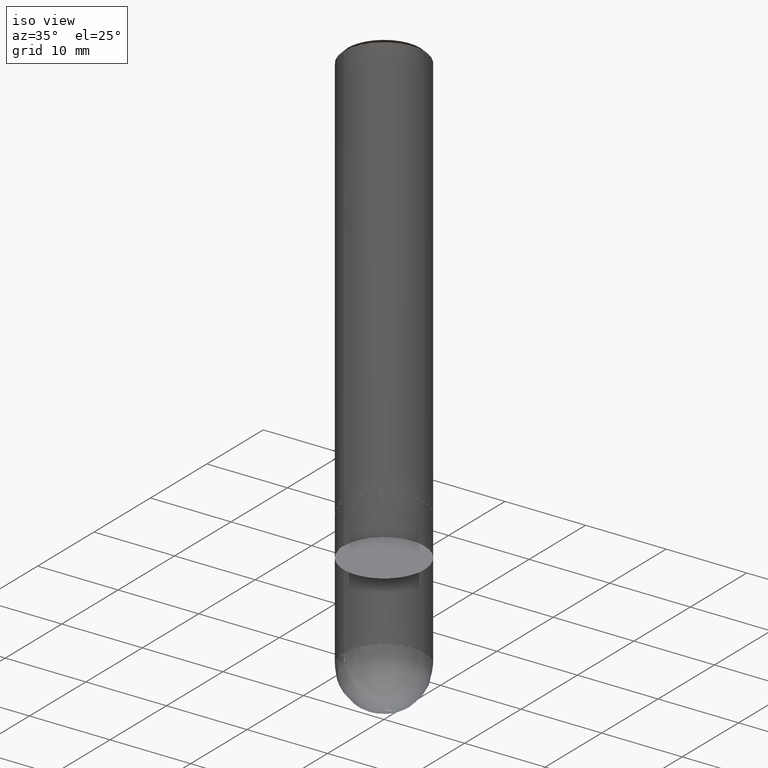
[diagram: clean part render]
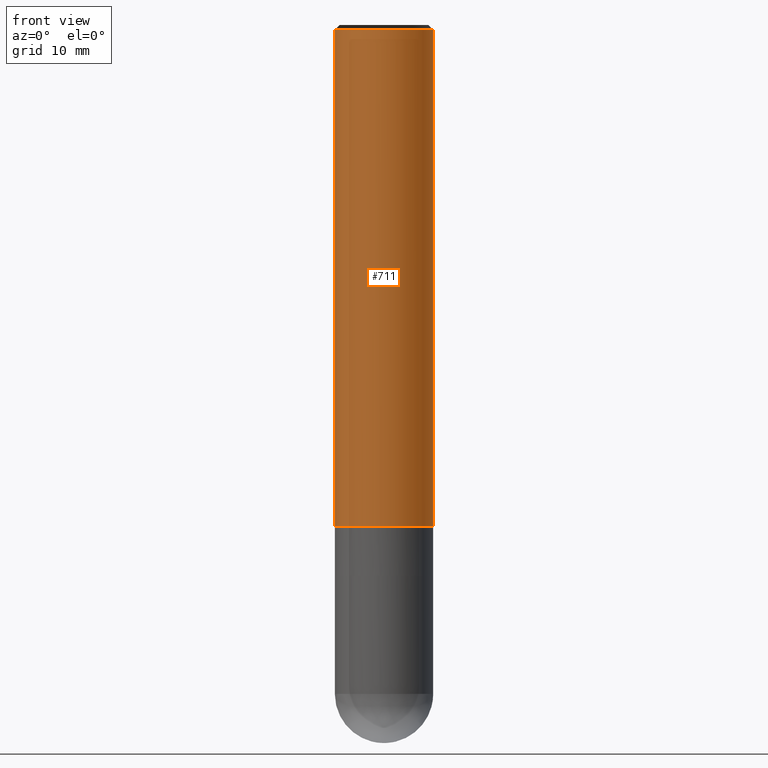
[diagram: tour spotlight — one face highlighted and labeled with its STEP entity id]
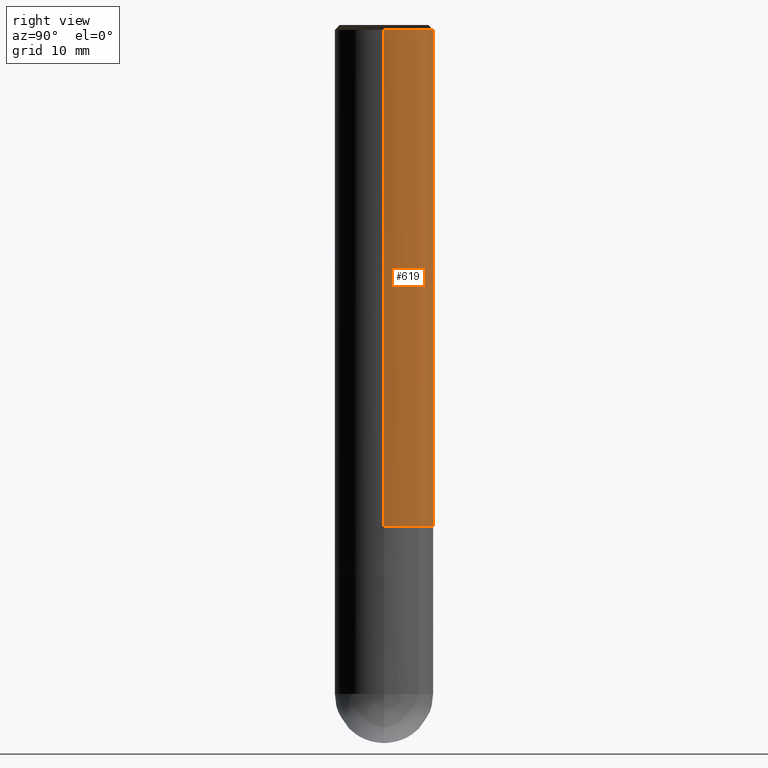
[diagram: tour spotlight — one face highlighted and labeled with its STEP entity id]
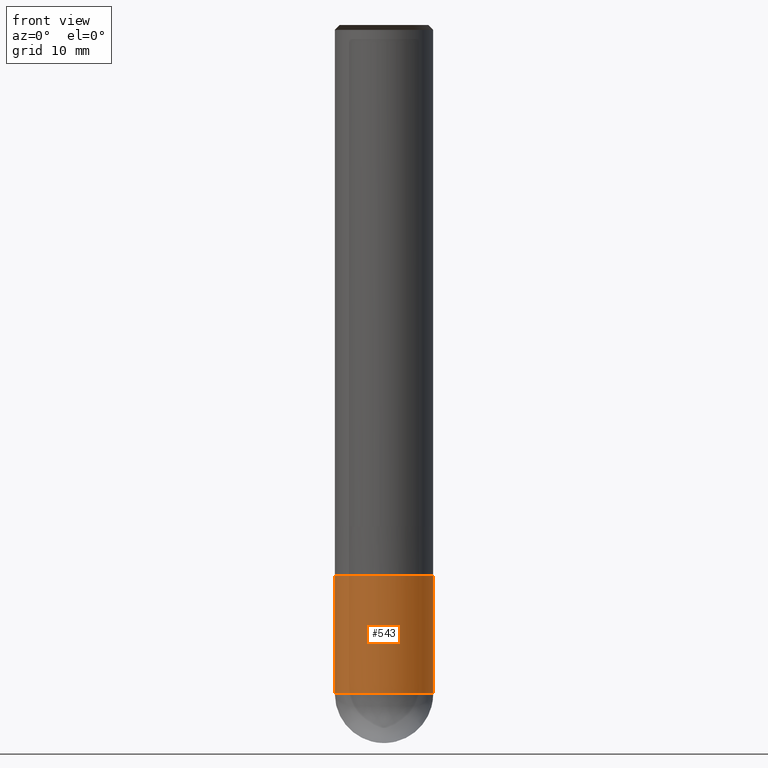
[diagram: tour spotlight — one face highlighted and labeled with its STEP entity id]
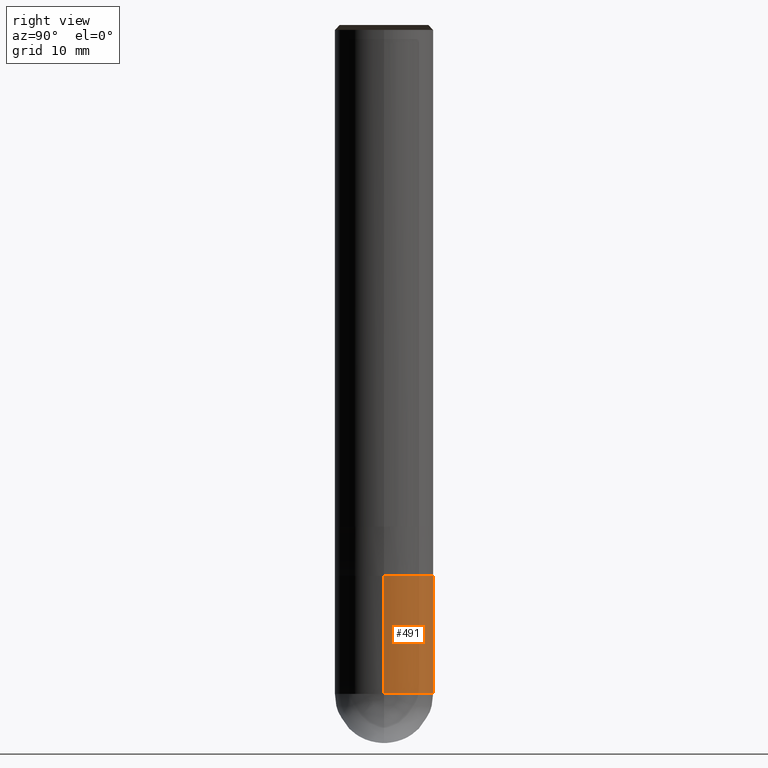
[diagram: tour spotlight — one face highlighted and labeled with its STEP entity id]
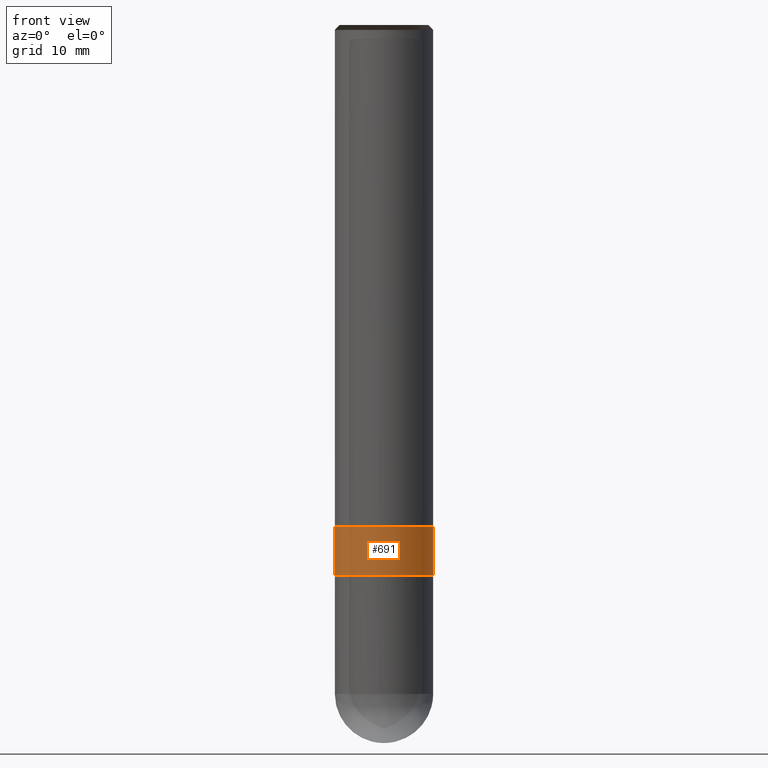
[diagram: tour spotlight — one face highlighted and labeled with its STEP entity id]
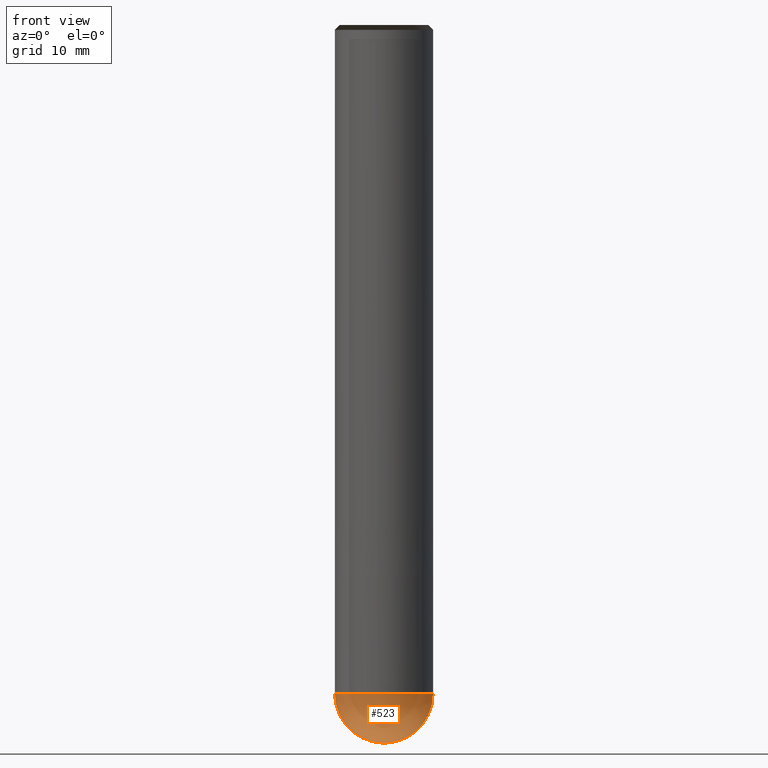
[diagram: tour spotlight — one face highlighted and labeled with its STEP entity id]
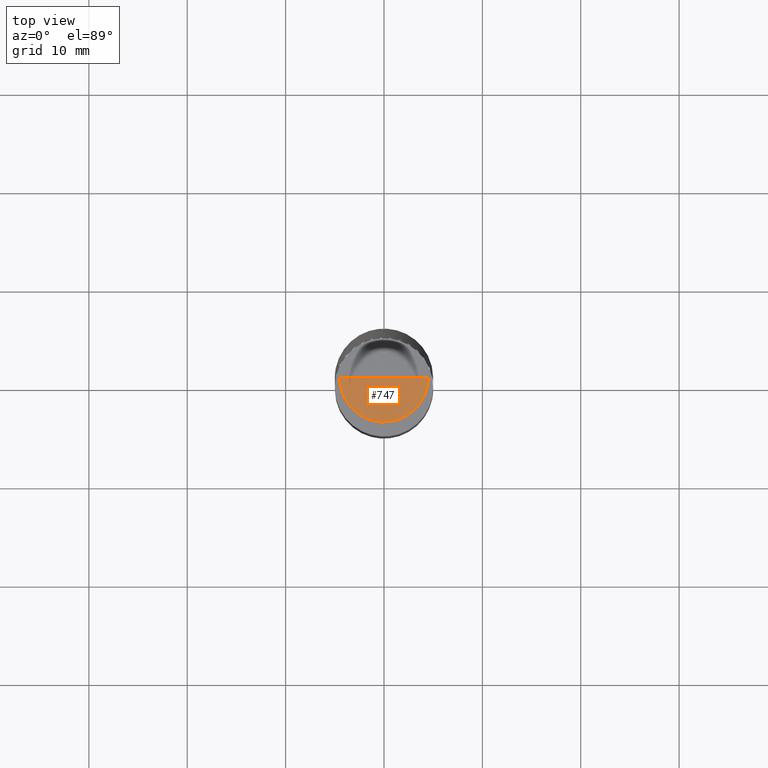
[diagram: tour spotlight — one face highlighted and labeled with its STEP entity id]
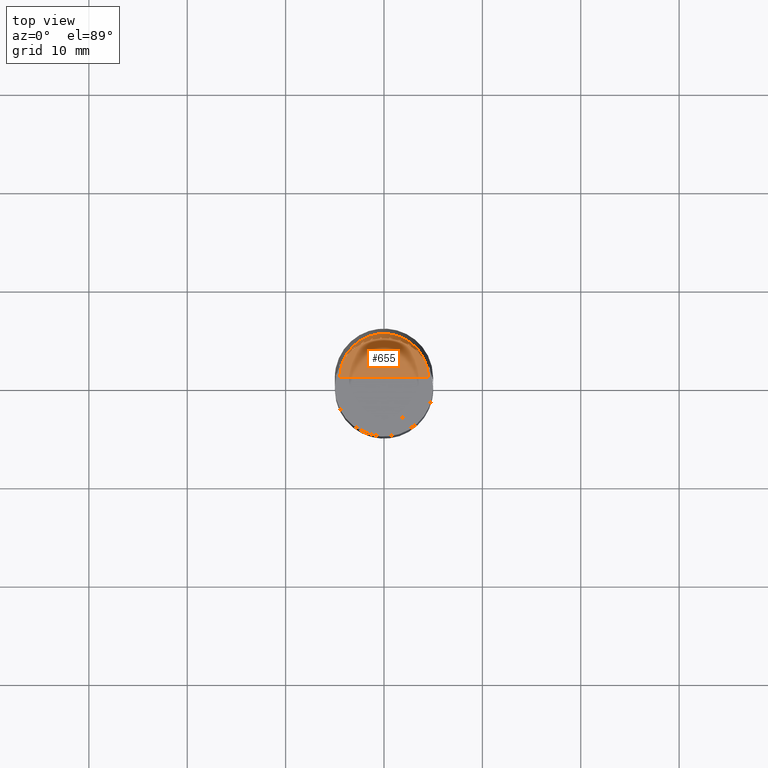
[diagram: tour spotlight — one face highlighted and labeled with its STEP entity id]
A machine part: a face-by-face anatomy tour. The part has 16 B-rep faces; the first image is the clean iso view, then the 8 largest visible faces are spotlighted one at a time (largest first), each with its STEP entity span.

Face 1 — front view, entity #711. In plain terms, the highlighted face is a freeform B-spline surface patch.
Definition (entity closure, byte-faithful):
#426=CARTESIAN_POINT('',(5.0,0.0,0.0));
#430=CARTESIAN_POINT('',(-5.0,0.0,0.0));
#431=CARTESIAN_POINT('',(5.0,0.0,50.5));
#435=CARTESIAN_POINT('',(-5.0,0.0,50.5));
#442=CARTESIAN_POINT('',(-5.0,-5.0,0.0));
#443=CARTESIAN_POINT('',(0.0,-5.0,0.0));
#444=CARTESIAN_POINT('',(5.0,-5.0,0.0));
#445=CARTESIAN_POINT('',(-5.0,-5.0,50.5));
#446=CARTESIAN_POINT('',(0.0,-5.0,50.5));
#447=CARTESIAN_POINT('',(5.0,-5.0,50.5));
#692=(
BOUNDED_SURFACE()
B_SPLINE_SURFACE(1,2,(
(#430,#442,#443,#444,#426),
(#435,#445,#446,#447,#431)
), .UNSPECIFIED.,.F.,.F.,.F.)
B_SPLINE_SURFACE_WITH_KNOTS((2,2),(3,2,3),(
0.0,1.0),(
0.0,0.5,1.0), .UNSPECIFIED.)
GEOMETRIC_REPRESENTATION_ITEM()
RATIONAL_B_SPLINE_SURFACE(((1.0,0.707106781187,1.0,0.707106781187,1.0),
(1.0,0.707106781187,1.0,0.707106781187,1.0)
))
REPRESENTATION_ITEM('')
SURFACE()
);
#693=(
BOUNDED_CURVE()
B_SPLINE_CURVE(2,(#426,#444,#443,#442,#430),.UNSPECIFIED.,.F.,.F.)
B_SPLINE_CURVE_WITH_KNOTS((3,2,3),
(0.0,0.5,1.0),.UNSPECIFIED.)
CURVE()
GEOMETRIC_REPRESENTATION_ITEM()
RATIONAL_B_SPLINE_CURVE((1.0,0.707106781187,1.0,0.707106781187,1.0))
REPRESENTATION_ITEM('')
);
#694=(
BOUNDED_CURVE()
B_SPLINE_CURVE(1,(#430,#435),.UNSPECIFIED.,.F.,.F.)
B_SPLINE_CURVE_WITH_KNOTS((2,2),
(0.0,1.0),.UNSPECIFIED.)
CURVE()
GEOMETRIC_REPRESENTATION_ITEM()
RATIONAL_B_SPLINE_CURVE((1.0,1.0))
REPRESENTATION_ITEM('')
);
#695=(
BOUNDED_CURVE()
B_SPLINE_CURVE(2,(#435,#445,#446,#447,#431),.UNSPECIFIED.,.F.,.F.)
B_SPLINE_CURVE_WITH_KNOTS((3,2,3),
(0.0,0.5,1.0),.UNSPECIFIED.)
CURVE()
GEOMETRIC_REPRESENTATION_ITEM()
RATIONAL_B_SPLINE_CURVE((1.0,0.707106781187,1.0,0.707106781187,1.0))
REPRESENTATION_ITEM('')
);
#696=(
BOUNDED_CURVE()
B_SPLINE_CURVE(1,(#431,#426),.UNSPECIFIED.,.F.,.F.)
B_SPLINE_CURVE_WITH_KNOTS((2,2),
(0.0,1.0),.UNSPECIFIED.)
CURVE()
GEOMETRIC_REPRESENTATION_ITEM()
RATIONAL_B_SPLINE_CURVE((1.0,1.0))
REPRESENTATION_ITEM('')
);
#697=VERTEX_POINT('',#426);
#698=VERTEX_POINT('',#430);
#699=VERTEX_POINT('',#431);
#700=VERTEX_POINT('',#435);
#701=EDGE_CURVE('',#697,#698,#693,.T.);
#702=EDGE_CURVE('',#698,#700,#694,.T.);
#703=EDGE_CURVE('',#700,#699,#695,.T.);
#704=EDGE_CURVE('',#699,#697,#696,.T.);
#705=ORIENTED_EDGE('',*,*,#701,.T.);
#706=ORIENTED_EDGE('',*,*,#702,.T.);
#707=ORIENTED_EDGE('',*,*,#703,.T.);
#708=ORIENTED_EDGE('',*,*,#704,.T.);
#709=EDGE_LOOP('',(#705,#706,#707,#708));
#710=FACE_OUTER_BOUND('',#709,.T.);
#711=ADVANCED_FACE('',(#710),#692,.T.);

Face 2 — right view, entity #619. In plain terms, the highlighted face is a freeform B-spline surface patch.
Definition (entity closure, byte-faithful):
#426=CARTESIAN_POINT('',(5.0,0.0,0.0));
#427=CARTESIAN_POINT('',(5.0,5.0,0.0));
#428=CARTESIAN_POINT('',(0.0,5.0,0.0));
#429=CARTESIAN_POINT('',(-5.0,5.0,0.0));
#430=CARTESIAN_POINT('',(-5.0,0.0,0.0));
#431=CARTESIAN_POINT('',(5.0,0.0,50.5));
#432=CARTESIAN_POINT('',(5.0,5.0,50.5));
#433=CARTESIAN_POINT('',(0.0,5.0,50.5));
#434=CARTESIAN_POINT('',(-5.0,5.0,50.5));
#435=CARTESIAN_POINT('',(-5.0,0.0,50.5));
#600=(
BOUNDED_SURFACE()
B_SPLINE_SURFACE(1,2,(
(#426,#427,#428,#429,#430),
(#431,#432,#433,#434,#435)
), .UNSPECIFIED.,.F.,.F.,.F.)
B_SPLINE_SURFACE_WITH_KNOTS((2,2),(3,2,3),(
0.0,1.0),(
0.0,0.5,1.0), .UNSPECIFIED.)
GEOMETRIC_REPRESENTATION_ITEM()
RATIONAL_B_SPLINE_SURFACE(((1.0,0.707106781187,1.0,0.707106781187,1.0),
(1.0,0.707106781187,1.0,0.707106781187,1.0)
))
REPRESENTATION_ITEM('')
SURFACE()
);
#601=(
BOUNDED_CURVE()
B_SPLINE_CURVE(2,(#430,#429,#428,#427,#426),.UNSPECIFIED.,.F.,.F.)
B_SPLINE_CURVE_WITH_KNOTS((3,2,3),
(0.0,0.5,1.0),.UNSPECIFIED.)
CURVE()
GEOMETRIC_REPRESENTATION_ITEM()
RATIONAL_B_SPLINE_CURVE((1.0,0.707106781187,1.0,0.707106781187,1.0))
REPRESENTATION_ITEM('')
);
#602=(
BOUNDED_CURVE()
B_SPLINE_CURVE(1,(#426,#431),.UNSPECIFIED.,.F.,.F.)
B_SPLINE_CURVE_WITH_KNOTS((2,2),
(0.0,1.0),.UNSPECIFIED.)
CURVE()
GEOMETRIC_REPRESENTATION_ITEM()
RATIONAL_B_SPLINE_CURVE((1.0,1.0))
REPRESENTATION_ITEM('')
);
#603=(
BOUNDED_CURVE()
B_SPLINE_CURVE(2,(#431,#432,#433,#434,#435),.UNSPECIFIED.,.F.,.F.)
B_SPLINE_CURVE_WITH_KNOTS((3,2,3),
(0.0,0.5,1.0),.UNSPECIFIED.)
CURVE()
GEOMETRIC_REPRESENTATION_ITEM()
RATIONAL_B_SPLINE_CURVE((1.0,0.707106781187,1.0,0.707106781187,1.0))
REPRESENTATION_ITEM('')
);
#604=(
BOUNDED_CURVE()
B_SPLINE_CURVE(1,(#435,#430),.UNSPECIFIED.,.F.,.F.)
B_SPLINE_CURVE_WITH_KNOTS((2,2),
(0.0,1.0),.UNSPECIFIED.)
CURVE()
GEOMETRIC_REPRESENTATION_ITEM()
RATIONAL_B_SPLINE_CURVE((1.0,1.0))
REPRESENTATION_ITEM('')
);
#605=VERTEX_POINT('',#426);
#606=VERTEX_POINT('',#430);
#607=VERTEX_POINT('',#431);
#608=VERTEX_POINT('',#435);
#609=EDGE_CURVE('',#606,#605,#601,.T.);
#610=EDGE_CURVE('',#605,#607,#602,.T.);
#611=EDGE_CURVE('',#607,#608,#603,.T.);
#612=EDGE_CURVE('',#608,#606,#604,.T.);
#613=ORIENTED_EDGE('',*,*,#609,.T.);
#614=ORIENTED_EDGE('',*,*,#610,.T.);
#615=ORIENTED_EDGE('',*,*,#611,.T.);
#616=ORIENTED_EDGE('',*,*,#612,.T.);
#617=EDGE_LOOP('',(#613,#614,#615,#616));
#618=FACE_OUTER_BOUND('',#617,.T.);
#619=ADVANCED_FACE('',(#618),#600,.T.);

Face 3 — front view, entity #543. In plain terms, the highlighted face is a freeform B-spline surface patch.
Definition (entity closure, byte-faithful):
#406=CARTESIAN_POINT('',(5.0,0.0,-17.0));
#410=CARTESIAN_POINT('',(-5.0,0.0,-17.0));
#411=CARTESIAN_POINT('',(5.0,0.0,-5.0));
#415=CARTESIAN_POINT('',(-5.0,0.0,-5.0));
#420=CARTESIAN_POINT('',(-5.0,-5.0,-17.0));
#421=CARTESIAN_POINT('',(0.0,-5.0,-17.0));
#422=CARTESIAN_POINT('',(5.0,-5.0,-17.0));
#423=CARTESIAN_POINT('',(-5.0,-5.0,-5.0));
#424=CARTESIAN_POINT('',(0.0,-5.0,-5.0));
#425=CARTESIAN_POINT('',(5.0,-5.0,-5.0));
#524=(
BOUNDED_SURFACE()
B_SPLINE_SURFACE(1,2,(
(#410,#420,#421,#422,#406),
(#415,#423,#424,#425,#411)
), .UNSPECIFIED.,.F.,.F.,.F.)
B_SPLINE_SURFACE_WITH_KNOTS((2,2),(3,2,3),(
0.0,1.0),(
0.0,0.5,1.0), .UNSPECIFIED.)
GEOMETRIC_REPRESENTATION_ITEM()
RATIONAL_B_SPLINE_SURFACE(((1.0,0.707106781187,1.0,0.707106781187,1.0),
(1.0,0.707106781187,1.0,0.707106781187,1.0)
))
REPRESENTATION_ITEM('')
SURFACE()
);
#525=(
BOUNDED_CURVE()
B_SPLINE_CURVE(2,(#406,#422,#421,#420,#410),.UNSPECIFIED.,.F.,.F.)
B_SPLINE_CURVE_WITH_KNOTS((3,2,3),
(0.0,0.5,1.0),.UNSPECIFIED.)
CURVE()
GEOMETRIC_REPRESENTATION_ITEM()
RATIONAL_B_SPLINE_CURVE((1.0,0.707106781187,1.0,0.707106781187,1.0))
REPRESENTATION_ITEM('')
);
#526=(
BOUNDED_CURVE()
B_SPLINE_CURVE(1,(#410,#415),.UNSPECIFIED.,.F.,.F.)
B_SPLINE_CURVE_WITH_KNOTS((2,2),
(0.0,1.0),.UNSPECIFIED.)
CURVE()
GEOMETRIC_REPRESENTATION_ITEM()
RATIONAL_B_SPLINE_CURVE((1.0,1.0))
REPRESENTATION_ITEM('')
);
#527=(
BOUNDED_CURVE()
B_SPLINE_CURVE(2,(#415,#423,#424,#425,#411),.UNSPECIFIED.,.F.,.F.)
B_SPLINE_CURVE_WITH_KNOTS((3,2,3),
(0.0,0.5,1.0),.UNSPECIFIED.)
CURVE()
GEOMETRIC_REPRESENTATION_ITEM()
RATIONAL_B_SPLINE_CURVE((1.0,0.707106781187,1.0,0.707106781187,1.0))
REPRESENTATION_ITEM('')
);
#528=(
BOUNDED_CURVE()
B_SPLINE_CURVE(1,(#411,#406),.UNSPECIFIED.,.F.,.F.)
B_SPLINE_CURVE_WITH_KNOTS((2,2),
(0.0,1.0),.UNSPECIFIED.)
CURVE()
GEOMETRIC_REPRESENTATION_ITEM()
RATIONAL_B_SPLINE_CURVE((1.0,1.0))
REPRESENTATION_ITEM('')
);
#529=VERTEX_POINT('',#406);
#530=VERTEX_POINT('',#410);
#531=VERTEX_POINT('',#411);
#532=VERTEX_POINT('',#415);
#533=EDGE_CURVE('',#529,#530,#525,.T.);
#534=EDGE_CURVE('',#530,#532,#526,.T.);
#535=EDGE_CURVE('',#532,#531,#527,.T.);
#536=EDGE_CURVE('',#531,#529,#528,.T.);
#537=ORIENTED_EDGE('',*,*,#533,.T.);
#538=ORIENTED_EDGE('',*,*,#534,.T.);
#539=ORIENTED_EDGE('',*,*,#535,.T.);
#540=ORIENTED_EDGE('',*,*,#536,.T.);
#541=EDGE_LOOP('',(#537,#538,#539,#540));
#542=FACE_OUTER_BOUND('',#541,.T.);
#543=ADVANCED_FACE('',(#542),#524,.T.);

Face 4 — right view, entity #491. In plain terms, the highlighted face is a freeform B-spline surface patch.
Definition (entity closure, byte-faithful):
#406=CARTESIAN_POINT('',(5.0,0.0,-17.0));
#407=CARTESIAN_POINT('',(5.0,5.0,-17.0));
#408=CARTESIAN_POINT('',(0.0,5.0,-17.0));
#409=CARTESIAN_POINT('',(-5.0,5.0,-17.0));
#410=CARTESIAN_POINT('',(-5.0,0.0,-17.0));
#411=CARTESIAN_POINT('',(5.0,0.0,-5.0));
#412=CARTESIAN_POINT('',(5.0,5.0,-5.0));
#413=CARTESIAN_POINT('',(0.0,5.0,-5.0));
#414=CARTESIAN_POINT('',(-5.0,5.0,-5.0));
#415=CARTESIAN_POINT('',(-5.0,0.0,-5.0));
#472=(
BOUNDED_SURFACE()
B_SPLINE_SURFACE(1,2,(
(#406,#407,#408,#409,#410),
(#411,#412,#413,#414,#415)
), .UNSPECIFIED.,.F.,.F.,.F.)
B_SPLINE_SURFACE_WITH_KNOTS((2,2),(3,2,3),(
0.0,1.0),(
0.0,0.5,1.0), .UNSPECIFIED.)
GEOMETRIC_REPRESENTATION_ITEM()
RATIONAL_B_SPLINE_SURFACE(((1.0,0.707106781187,1.0,0.707106781187,1.0),
(1.0,0.707106781187,1.0,0.707106781187,1.0)
))
REPRESENTATION_ITEM('')
SURFACE()
);
#473=(
BOUNDED_CURVE()
B_SPLINE_CURVE(2,(#410,#409,#408,#407,#406),.UNSPECIFIED.,.F.,.F.)
B_SPLINE_CURVE_WITH_KNOTS((3,2,3),
(0.0,0.5,1.0),.UNSPECIFIED.)
CURVE()
GEOMETRIC_REPRESENTATION_ITEM()
RATIONAL_B_SPLINE_CURVE((1.0,0.707106781187,1.0,0.707106781187,1.0))
REPRESENTATION_ITEM('')
);
#474=(
BOUNDED_CURVE()
B_SPLINE_CURVE(1,(#406,#411),.UNSPECIFIED.,.F.,.F.)
B_SPLINE_CURVE_WITH_KNOTS((2,2),
(0.0,1.0),.UNSPECIFIED.)
CURVE()
GEOMETRIC_REPRESENTATION_ITEM()
RATIONAL_B_SPLINE_CURVE((1.0,1.0))
REPRESENTATION_ITEM('')
);
#475=(
BOUNDED_CURVE()
B_SPLINE_CURVE(2,(#411,#412,#413,#414,#415),.UNSPECIFIED.,.F.,.F.)
B_SPLINE_CURVE_WITH_KNOTS((3,2,3),
(0.0,0.5,1.0),.UNSPECIFIED.)
CURVE()
GEOMETRIC_REPRESENTATION_ITEM()
RATIONAL_B_SPLINE_CURVE((1.0,0.707106781187,1.0,0.707106781187,1.0))
REPRESENTATION_ITEM('')
);
#476=(
BOUNDED_CURVE()
B_SPLINE_CURVE(1,(#415,#410),.UNSPECIFIED.,.F.,.F.)
B_SPLINE_CURVE_WITH_KNOTS((2,2),
(0.0,1.0),.UNSPECIFIED.)
CURVE()
GEOMETRIC_REPRESENTATION_ITEM()
RATIONAL_B_SPLINE_CURVE((1.0,1.0))
REPRESENTATION_ITEM('')
);
#477=VERTEX_POINT('',#406);
#478=VERTEX_POINT('',#410);
#479=VERTEX_POINT('',#411);
#480=VERTEX_POINT('',#415);
#481=EDGE_CURVE('',#478,#477,#473,.T.);
#482=EDGE_CURVE('',#477,#479,#474,.T.);
#483=EDGE_CURVE('',#479,#480,#475,.T.);
#484=EDGE_CURVE('',#480,#478,#476,.T.);
#485=ORIENTED_EDGE('',*,*,#481,.T.);
#486=ORIENTED_EDGE('',*,*,#482,.T.);
#487=ORIENTED_EDGE('',*,*,#483,.T.);
#488=ORIENTED_EDGE('',*,*,#484,.T.);
#489=EDGE_LOOP('',(#485,#486,#487,#488));
#490=FACE_OUTER_BOUND('',#489,.T.);
#491=ADVANCED_FACE('',(#490),#472,.T.);

Face 5 — front view, entity #691. In plain terms, the highlighted face is a freeform B-spline surface patch.
Definition (entity closure, byte-faithful):
#411=CARTESIAN_POINT('',(5.0,0.0,-5.0));
#415=CARTESIAN_POINT('',(-5.0,0.0,-5.0));
#423=CARTESIAN_POINT('',(-5.0,-5.0,-5.0));
#424=CARTESIAN_POINT('',(0.0,-5.0,-5.0));
#425=CARTESIAN_POINT('',(5.0,-5.0,-5.0));
#426=CARTESIAN_POINT('',(5.0,0.0,0.0));
#430=CARTESIAN_POINT('',(-5.0,0.0,0.0));
#442=CARTESIAN_POINT('',(-5.0,-5.0,0.0));
#443=CARTESIAN_POINT('',(0.0,-5.0,0.0));
#444=CARTESIAN_POINT('',(5.0,-5.0,0.0));
#672=(
BOUNDED_SURFACE()
B_SPLINE_SURFACE(1,2,(
(#415,#423,#424,#425,#411),
(#430,#442,#443,#444,#426)
), .UNSPECIFIED.,.F.,.F.,.F.)
B_SPLINE_SURFACE_WITH_KNOTS((2,2),(3,2,3),(
0.0,1.0),(
0.0,0.5,1.0), .UNSPECIFIED.)
GEOMETRIC_REPRESENTATION_ITEM()
RATIONAL_B_SPLINE_SURFACE(((1.0,0.707106781187,1.0,0.707106781187,1.0),
(1.0,0.707106781187,1.0,0.707106781187,1.0)
))
REPRESENTATION_ITEM('')
SURFACE()
);
#673=(
BOUNDED_CURVE()
B_SPLINE_CURVE(2,(#411,#425,#424,#423,#415),.UNSPECIFIED.,.F.,.F.)
B_SPLINE_CURVE_WITH_KNOTS((3,2,3),
(0.0,0.5,1.0),.UNSPECIFIED.)
CURVE()
GEOMETRIC_REPRESENTATION_ITEM()
RATIONAL_B_SPLINE_CURVE((1.0,0.707106781187,1.0,0.707106781187,1.0))
REPRESENTATION_ITEM('')
);
#674=(
BOUNDED_CURVE()
B_SPLINE_CURVE(1,(#415,#430),.UNSPECIFIED.,.F.,.F.)
B_SPLINE_CURVE_WITH_KNOTS((2,2),
(0.0,1.0),.UNSPECIFIED.)
CURVE()
GEOMETRIC_REPRESENTATION_ITEM()
RATIONAL_B_SPLINE_CURVE((1.0,1.0))
REPRESENTATION_ITEM('')
);
#675=(
BOUNDED_CURVE()
B_SPLINE_CURVE(2,(#430,#442,#443,#444,#426),.UNSPECIFIED.,.F.,.F.)
B_SPLINE_CURVE_WITH_KNOTS((3,2,3),
(0.0,0.5,1.0),.UNSPECIFIED.)
CURVE()
GEOMETRIC_REPRESENTATION_ITEM()
RATIONAL_B_SPLINE_CURVE((1.0,0.707106781187,1.0,0.707106781187,1.0))
REPRESENTATION_ITEM('')
);
#676=(
BOUNDED_CURVE()
B_SPLINE_CURVE(1,(#426,#411),.UNSPECIFIED.,.F.,.F.)
B_SPLINE_CURVE_WITH_KNOTS((2,2),
(0.0,1.0),.UNSPECIFIED.)
CURVE()
GEOMETRIC_REPRESENTATION_ITEM()
RATIONAL_B_SPLINE_CURVE((1.0,1.0))
REPRESENTATION_ITEM('')
);
#677=VERTEX_POINT('',#411);
#678=VERTEX_POINT('',#415);
#679=VERTEX_POINT('',#426);
#680=VERTEX_POINT('',#430);
#681=EDGE_CURVE('',#677,#678,#673,.T.);
#682=EDGE_CURVE('',#678,#680,#674,.T.);
#683=EDGE_CURVE('',#680,#679,#675,.T.);
#684=EDGE_CURVE('',#679,#677,#676,.T.);
#685=ORIENTED_EDGE('',*,*,#681,.T.);
#686=ORIENTED_EDGE('',*,*,#682,.T.);
#687=ORIENTED_EDGE('',*,*,#683,.T.);
#688=ORIENTED_EDGE('',*,*,#684,.T.);
#689=EDGE_LOOP('',(#685,#686,#687,#688));
#690=FACE_OUTER_BOUND('',#689,.T.);
#691=ADVANCED_FACE('',(#690),#672,.T.);

Face 6 — front view, entity #523. In plain terms, the highlighted face is a freeform B-spline surface patch.
Definition (entity closure, byte-faithful):
#400=CARTESIAN_POINT('',(0.0,0.0,-22.0));
#401=CARTESIAN_POINT('',(5.0,0.0,-22.0));
#405=CARTESIAN_POINT('',(-5.0,0.0,-22.0));
#406=CARTESIAN_POINT('',(5.0,0.0,-17.0));
#410=CARTESIAN_POINT('',(-5.0,0.0,-17.0));
#417=CARTESIAN_POINT('',(-5.0,-5.0,-22.0));
#418=CARTESIAN_POINT('',(0.0,-5.0,-22.0));
#419=CARTESIAN_POINT('',(5.0,-5.0,-22.0));
#420=CARTESIAN_POINT('',(-5.0,-5.0,-17.0));
#421=CARTESIAN_POINT('',(0.0,-5.0,-17.0));
#422=CARTESIAN_POINT('',(5.0,-5.0,-17.0));
#508=(
BOUNDED_SURFACE()
B_SPLINE_SURFACE(2,2,(
(#400,#400,#400,#400,#400),
(#405,#417,#418,#419,#401),
(#410,#420,#421,#422,#406)
), .UNSPECIFIED.,.F.,.F.,.F.)
B_SPLINE_SURFACE_WITH_KNOTS((3,3),(3,2,3),(
0.0,1.0),(
0.0,0.5,1.0), .UNSPECIFIED.)
GEOMETRIC_REPRESENTATION_ITEM()
RATIONAL_B_SPLINE_SURFACE(((1.0,0.707106781187,1.0,0.707106781187,1.0),
(0.707106781187,0.5,0.707106781187,0.5,0.707106781187),
(1.0,0.707106781187,1.0,0.707106781187,1.0)
))
REPRESENTATION_ITEM('')
SURFACE()
);
#509=(
BOUNDED_CURVE()
B_SPLINE_CURVE(2,(#406,#401,#400),.UNSPECIFIED.,.F.,.F.)
B_SPLINE_CURVE_WITH_KNOTS((3,3),
(0.0,1.0),.UNSPECIFIED.)
CURVE()
GEOMETRIC_REPRESENTATION_ITEM()
RATIONAL_B_SPLINE_CURVE((1.0,0.707106781187,1.0))
REPRESENTATION_ITEM('')
);
#510=(
BOUNDED_CURVE()
B_SPLINE_CURVE(2,(#400,#405,#410),.UNSPECIFIED.,.F.,.F.)
B_SPLINE_CURVE_WITH_KNOTS((3,3),
(0.0,1.0),.UNSPECIFIED.)
CURVE()
GEOMETRIC_REPRESENTATION_ITEM()
RATIONAL_B_SPLINE_CURVE((1.0,0.707106781187,1.0))
REPRESENTATION_ITEM('')
);
#511=(
BOUNDED_CURVE()
B_SPLINE_CURVE(2,(#410,#420,#421,#422,#406),.UNSPECIFIED.,.F.,.F.)
B_SPLINE_CURVE_WITH_KNOTS((3,2,3),
(0.0,0.5,1.0),.UNSPECIFIED.)
CURVE()
GEOMETRIC_REPRESENTATION_ITEM()
RATIONAL_B_SPLINE_CURVE((1.0,0.707106781187,1.0,0.707106781187,1.0))
REPRESENTATION_ITEM('')
);
#512=VERTEX_POINT('',#400);
#513=VERTEX_POINT('',#406);
#514=VERTEX_POINT('',#410);
#515=EDGE_CURVE('',#513,#512,#509,.T.);
#516=EDGE_CURVE('',#512,#514,#510,.T.);
#517=EDGE_CURVE('',#514,#513,#511,.T.);
#518=ORIENTED_EDGE('',*,*,#515,.T.);
#519=ORIENTED_EDGE('',*,*,#516,.T.);
#520=ORIENTED_EDGE('',*,*,#517,.T.);
#521=EDGE_LOOP('',(#518,#519,#520));
#522=FACE_OUTER_BOUND('',#521,.T.);
#523=ADVANCED_FACE('',(#522),#508,.T.);

Face 7 — top view, entity #747. In plain terms, the highlighted face is a freeform B-spline surface patch.
Definition (entity closure, byte-faithful):
#436=CARTESIAN_POINT('',(4.5,0.0,51.0));
#440=CARTESIAN_POINT('',(-4.5,0.0,51.0));
#441=CARTESIAN_POINT('',(0.0,0.0,51.0));
#448=CARTESIAN_POINT('',(-4.5,-4.5,51.0));
#449=CARTESIAN_POINT('',(0.0,-4.5,51.0));
#450=CARTESIAN_POINT('',(4.5,-4.5,51.0));
#732=(
BOUNDED_SURFACE()
B_SPLINE_SURFACE(1,2,(
(#440,#448,#449,#450,#436),
(#441,#441,#441,#441,#441)
), .UNSPECIFIED.,.F.,.F.,.F.)
B_SPLINE_SURFACE_WITH_KNOTS((2,2),(3,2,3),(
0.0,1.0),(
0.0,0.5,1.0), .UNSPECIFIED.)
GEOMETRIC_REPRESENTATION_ITEM()
RATIONAL_B_SPLINE_SURFACE(((1.0,0.707106781187,1.0,0.707106781187,1.0),
(1.0,0.707106781187,1.0,0.707106781187,1.0)
))
REPRESENTATION_ITEM('')
SURFACE()
);
#733=(
BOUNDED_CURVE()
B_SPLINE_CURVE(2,(#436,#450,#449,#448,#440),.UNSPECIFIED.,.F.,.F.)
B_SPLINE_CURVE_WITH_KNOTS((3,2,3),
(0.0,0.5,1.0),.UNSPECIFIED.)
CURVE()
GEOMETRIC_REPRESENTATION_ITEM()
RATIONAL_B_SPLINE_CURVE((1.0,0.707106781187,1.0,0.707106781187,1.0))
REPRESENTATION_ITEM('')
);
#734=(
BOUNDED_CURVE()
B_SPLINE_CURVE(1,(#440,#441),.UNSPECIFIED.,.F.,.F.)
B_SPLINE_CURVE_WITH_KNOTS((2,2),
(0.0,1.0),.UNSPECIFIED.)
CURVE()
GEOMETRIC_REPRESENTATION_ITEM()
RATIONAL_B_SPLINE_CURVE((1.0,1.0))
REPRESENTATION_ITEM('')
);
#735=(
BOUNDED_CURVE()
B_SPLINE_CURVE(1,(#441,#436),.UNSPECIFIED.,.F.,.F.)
B_SPLINE_CURVE_WITH_KNOTS((2,2),
(0.0,1.0),.UNSPECIFIED.)
CURVE()
GEOMETRIC_REPRESENTATION_ITEM()
RATIONAL_B_SPLINE_CURVE((1.0,1.0))
REPRESENTATION_ITEM('')
);
#736=VERTEX_POINT('',#436);
#737=VERTEX_POINT('',#440);
#738=VERTEX_POINT('',#441);
#739=EDGE_CURVE('',#736,#737,#733,.T.);
#740=EDGE_CURVE('',#737,#738,#734,.T.);
#741=EDGE_CURVE('',#738,#736,#735,.T.);
#742=ORIENTED_EDGE('',*,*,#739,.T.);
#743=ORIENTED_EDGE('',*,*,#740,.T.);
#744=ORIENTED_EDGE('',*,*,#741,.T.);
#745=EDGE_LOOP('',(#742,#743,#744));
#746=FACE_OUTER_BOUND('',#745,.T.);
#747=ADVANCED_FACE('',(#746),#732,.T.);

Face 8 — top view, entity #655. In plain terms, the highlighted face is a freeform B-spline surface patch.
Definition (entity closure, byte-faithful):
#436=CARTESIAN_POINT('',(4.5,0.0,51.0));
#437=CARTESIAN_POINT('',(4.5,4.5,51.0));
#438=CARTESIAN_POINT('',(0.0,4.5,51.0));
#439=CARTESIAN_POINT('',(-4.5,4.5,51.0));
#440=CARTESIAN_POINT('',(-4.5,0.0,51.0));
#441=CARTESIAN_POINT('',(0.0,0.0,51.0));
#640=(
BOUNDED_SURFACE()
B_SPLINE_SURFACE(1,2,(
(#436,#437,#438,#439,#440),
(#441,#441,#441,#441,#441)
), .UNSPECIFIED.,.F.,.F.,.F.)
B_SPLINE_SURFACE_WITH_KNOTS((2,2),(3,2,3),(
0.0,1.0),(
0.0,0.5,1.0), .UNSPECIFIED.)
GEOMETRIC_REPRESENTATION_ITEM()
RATIONAL_B_SPLINE_SURFACE(((1.0,0.707106781187,1.0,0.707106781187,1.0),
(1.0,0.707106781187,1.0,0.707106781187,1.0)
))
REPRESENTATION_ITEM('')
SURFACE()
);
#641=(
BOUNDED_CURVE()
B_SPLINE_CURVE(2,(#440,#439,#438,#437,#436),.UNSPECIFIED.,.F.,.F.)
B_SPLINE_CURVE_WITH_KNOTS((3,2,3),
(0.0,0.5,1.0),.UNSPECIFIED.)
CURVE()
GEOMETRIC_REPRESENTATION_ITEM()
RATIONAL_B_SPLINE_CURVE((1.0,0.707106781187,1.0,0.707106781187,1.0))
REPRESENTATION_ITEM('')
);
#642=(
BOUNDED_CURVE()
B_SPLINE_CURVE(1,(#436,#441),.UNSPECIFIED.,.F.,.F.)
B_SPLINE_CURVE_WITH_KNOTS((2,2),
(0.0,1.0),.UNSPECIFIED.)
CURVE()
GEOMETRIC_REPRESENTATION_ITEM()
RATIONAL_B_SPLINE_CURVE((1.0,1.0))
REPRESENTATION_ITEM('')
);
#643=(
BOUNDED_CURVE()
B_SPLINE_CURVE(1,(#441,#440),.UNSPECIFIED.,.F.,.F.)
B_SPLINE_CURVE_WITH_KNOTS((2,2),
(0.0,1.0),.UNSPECIFIED.)
CURVE()
GEOMETRIC_REPRESENTATION_ITEM()
RATIONAL_B_SPLINE_CURVE((1.0,1.0))
REPRESENTATION_ITEM('')
);
#644=VERTEX_POINT('',#436);
#645=VERTEX_POINT('',#440);
#646=VERTEX_POINT('',#441);
#647=EDGE_CURVE('',#645,#644,#641,.T.);
#648=EDGE_CURVE('',#644,#646,#642,.T.);
#649=EDGE_CURVE('',#646,#645,#643,.T.);
#650=ORIENTED_EDGE('',*,*,#647,.T.);
#651=ORIENTED_EDGE('',*,*,#648,.T.);
#652=ORIENTED_EDGE('',*,*,#649,.T.);
#653=EDGE_LOOP('',(#650,#651,#652));
#654=FACE_OUTER_BOUND('',#653,.T.);
#655=ADVANCED_FACE('',(#654),#640,.T.);